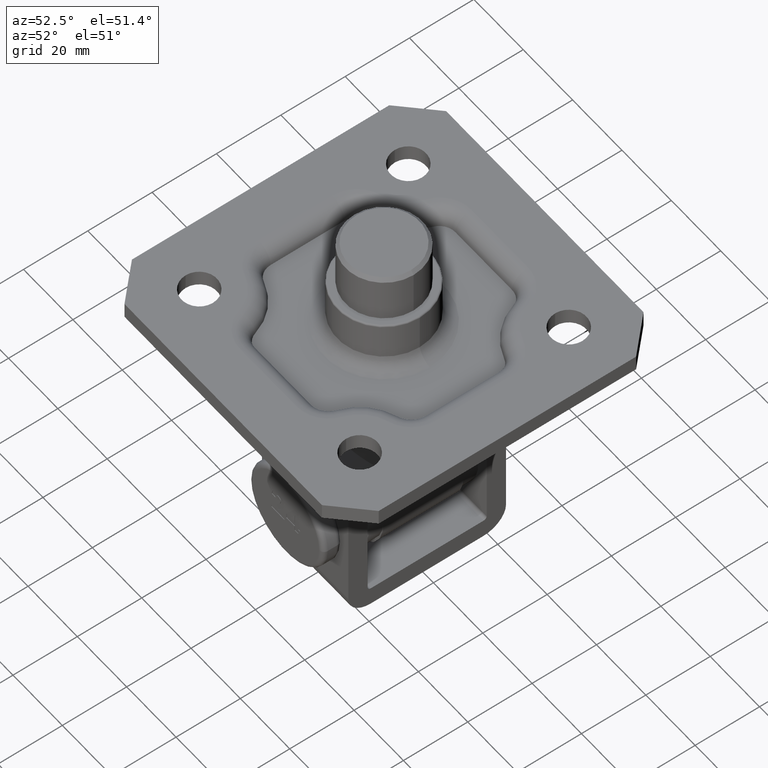
[diagram: clean part render]
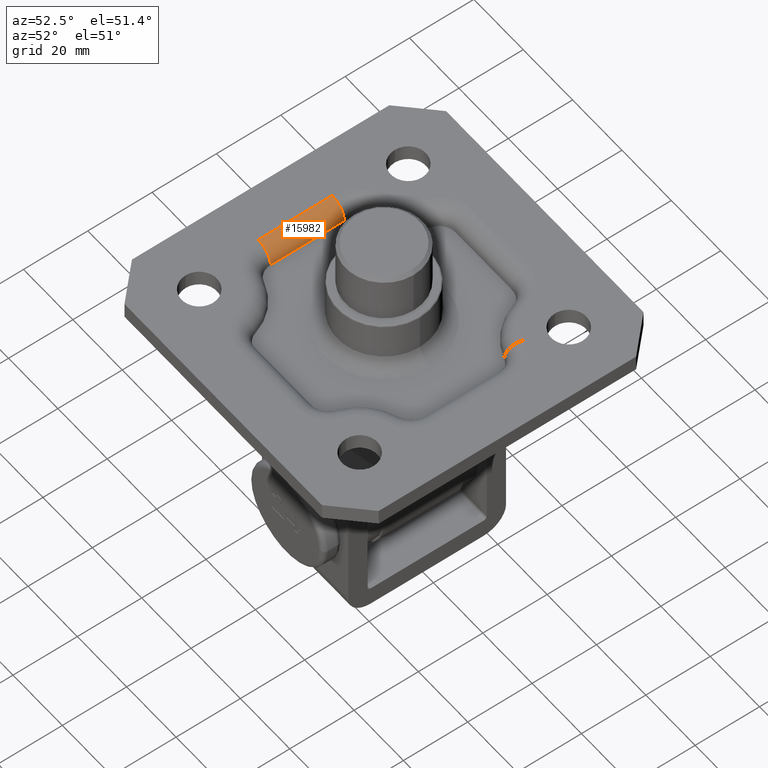
[diagram: same view with one face highlighted and labeled with its STEP entity id]
A machine part, auxiliary view. The second image highlights one B-rep face of the part: STEP entity #15982.
In plain terms, the highlighted cylindrical surface (edge-blend (fillet) strip) has radius 5 mm, axis along (-0, -1, 0).
Its self-contained STEP definition (entity closure, byte-faithful):
#372 = CARTESIAN_POINT ( 'NONE',  ( 35.99999999999999300, -11.48215044301631400, 2.500000000000000000 ) ) ;
#1240 = DIRECTION ( 'NONE',  ( -0.0000000000000000000, 1.000000000000000000, -0.0000000000000000000 ) ) ;
#2150 = DIRECTION ( 'NONE',  ( 0.0000000000000000000, 1.000000000000000000, 0.0000000000000000000 ) ) ;
#2388 = VERTEX_POINT ( 'NONE', #8983 ) ;
#3536 = DIRECTION ( 'NONE',  ( 0.0000000000000000000, 0.0000000000000000000, 1.000000000000000000 ) ) ;
#4488 = LINE ( 'NONE', #6079, #12853 ) ;
#4863 = ORIENTED_EDGE ( 'NONE', *, *, #7527, .F. ) ;
#5140 = EDGE_CURVE ( 'NONE', #11370, #8584, #4488, .T. ) ;
#5591 = DIRECTION ( 'NONE',  ( 0.0000000000000000000, 1.000000000000000000, 0.0000000000000000000 ) ) ;
#6079 = CARTESIAN_POINT ( 'NONE',  ( 35.99999999999999300, 0.0000000000000000000, -2.500000000000000000 ) ) ;
#7527 = EDGE_CURVE ( 'NONE', #21728, #2388, #15538, .T. ) ;
#7929 = CARTESIAN_POINT ( 'NONE',  ( 35.99999999999999300, -11.48215044301631400, -2.500000000000000000 ) ) ;
#8140 = CARTESIAN_POINT ( 'NONE',  ( 35.99999999999999300, 11.48215044301631400, -2.500000000000000000 ) ) ;
#8524 = AXIS2_PLACEMENT_3D ( 'NONE', #17401, #2150, #3536 ) ;
#8584 = VERTEX_POINT ( 'NONE', #8140 ) ;
#8621 = DIRECTION ( 'NONE',  ( 0.0000000000000000000, -1.000000000000000000, 0.0000000000000000000 ) ) ;
#8983 = CARTESIAN_POINT ( 'NONE',  ( 30.99999999999999300, -11.48215044301631400, 2.500000000000000000 ) ) ;
#9426 = CIRCLE ( 'NONE', #8524, 4.999999999999999100 ) ;
#9658 = CARTESIAN_POINT ( 'NONE',  ( 35.99999999999999300, 15.56630577812391500, 2.500000000000000000 ) ) ;
#10591 = EDGE_LOOP ( 'NONE', ( #20064, #4863, #18639, #18308 ) ) ;
#11078 = EDGE_CURVE ( 'NONE', #11370, #2388, #15560, .T. ) ;
#11295 = DIRECTION ( 'NONE',  ( 0.0000000000000000000, -1.000000000000000000, 0.0000000000000000000 ) ) ;
#11370 = VERTEX_POINT ( 'NONE', #7929 ) ;
#12636 = AXIS2_PLACEMENT_3D ( 'NONE', #372, #5591, #20868 ) ;
#12853 = VECTOR ( 'NONE', #1240, 1000.000000000000000 ) ;
#12982 = CYLINDRICAL_SURFACE ( 'NONE', #16835, 5.000000000000000000 ) ;
#13560 = CARTESIAN_POINT ( 'NONE',  ( 30.99999999999999300, 11.48215044301631400, 2.500000000000000000 ) ) ;
#14846 = FACE_OUTER_BOUND ( 'NONE', #10591, .T. ) ;
#15538 = LINE ( 'NONE', #15570, #19276 ) ;
#15560 = CIRCLE ( 'NONE', #12636, 4.999999999999999100 ) ;
#15570 = CARTESIAN_POINT ( 'NONE',  ( 30.99999999999999300, 15.56630577812391500, 2.500000000000000000 ) ) ;
#15982 = ADVANCED_FACE ( 'NONE', ( #14846 ), #12982, .T. ) ;
#16599 = DIRECTION ( 'NONE',  ( 0.0000000000000000000, 0.0000000000000000000, -1.000000000000000000 ) ) ;
#16835 = AXIS2_PLACEMENT_3D ( 'NONE', #9658, #11295, #16599 ) ;
#17002 = EDGE_CURVE ( 'NONE', #8584, #21728, #9426, .T. ) ;
#17401 = CARTESIAN_POINT ( 'NONE',  ( 35.99999999999999300, 11.48215044301631400, 2.500000000000000000 ) ) ;
#18308 = ORIENTED_EDGE ( 'NONE', *, *, #5140, .F. ) ;
#18639 = ORIENTED_EDGE ( 'NONE', *, *, #17002, .F. ) ;
#19276 = VECTOR ( 'NONE', #8621, 1000.000000000000000 ) ;
#20064 = ORIENTED_EDGE ( 'NONE', *, *, #11078, .T. ) ;
#20868 = DIRECTION ( 'NONE',  ( 0.0000000000000000000, 0.0000000000000000000, 1.000000000000000000 ) ) ;
#21728 = VERTEX_POINT ( 'NONE', #13560 ) ;